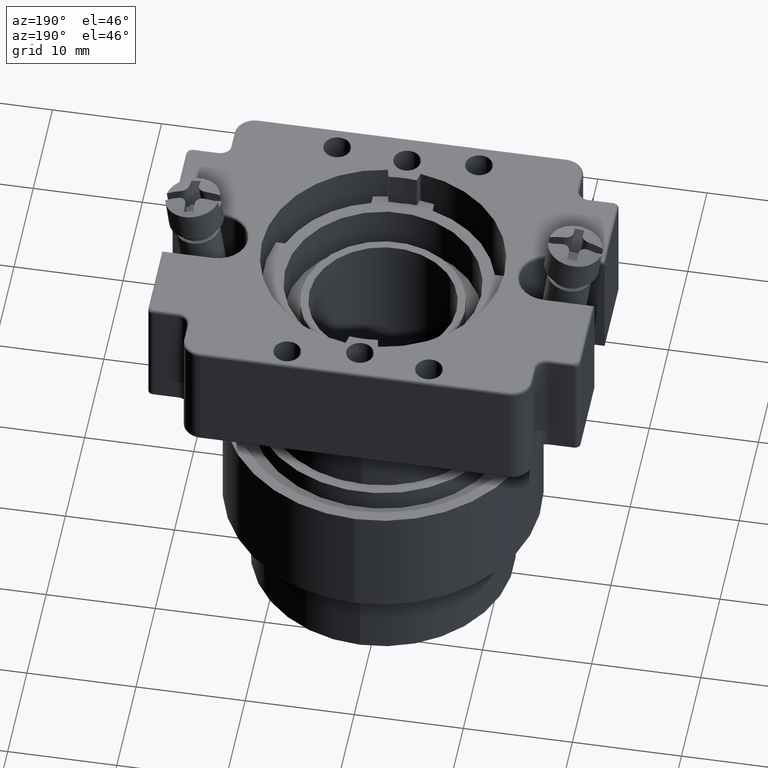
[diagram: clean part render]
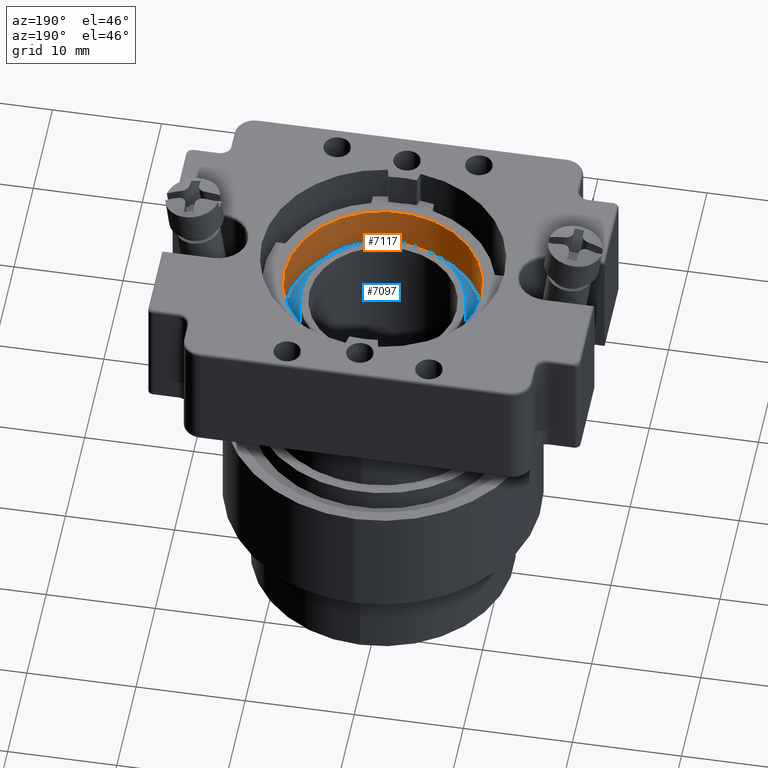
[diagram: same view with the hole feature highlighted: cylindrical wall and planar end face, labeled with their STEP entity ids]
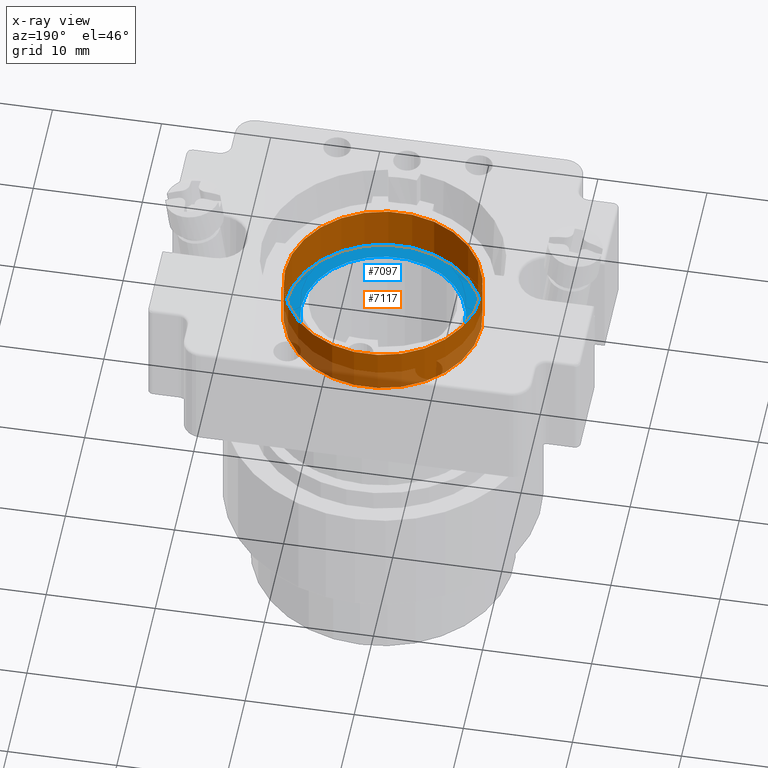
[diagram: x-ray of the same camera — body ghosted, the hole faces saturated]
A machine part, auxiliary view. The highlighted faces form one hole feature of diameter 18 mm: the cylindrical wall (entity #7117, orange) and its adjacent planar end face (entity #7097, blue) — they share a circular edge in the B-rep.
The next image is the same camera in x-ray (body ghosted, the hole faces saturated) — the bore reads through the body.
Wall:
#7083=CARTESIAN_POINT('',(-10.320895354876740,-0.031685679495354,9.0));
#7084=VERTEX_POINT('',#7083);
#7085=CARTESIAN_POINT('',(-10.320895354876740,-0.031685679495355,0.0));
#7086=DIRECTION('',(-1.0,0.0,0.0));
#7087=DIRECTION('',(0.0,0.0,-1.0));
#7088=AXIS2_PLACEMENT_3D('',#7085,#7086,#7087);
#7089=CIRCLE('',#7088,9.0);
#7090=EDGE_CURVE('',#7084,#7084,#7089,.T.);
#7098=CARTESIAN_POINT('',(-14.620895354876740,-0.031685679495356,0.0));
#7099=DIRECTION('',(1.0,9.682178E-017,0.0));
#7100=DIRECTION('',(0.0,0.0,-1.0));
#7101=AXIS2_PLACEMENT_3D('',#7098,#7099,#7100);
#7102=CYLINDRICAL_SURFACE('',#7101,9.0);
#7103=ORIENTED_EDGE('',*,*,#7090,.F.);
#7104=EDGE_LOOP('',(#7103));
#7105=FACE_OUTER_BOUND('',#7104,.T.);
#7106=CARTESIAN_POINT('',(-14.620895354876740,-0.031685679495355,9.0));
#7107=VERTEX_POINT('',#7106);
#7108=CARTESIAN_POINT('',(-14.620895354876740,-0.031685679495356,0.0));
#7109=DIRECTION('',(1.0,0.0,0.0));
#7110=DIRECTION('',(0.0,0.0,-1.0));
#7111=AXIS2_PLACEMENT_3D('',#7108,#7109,#7110);
#7112=CIRCLE('',#7111,9.0);
#7113=EDGE_CURVE('',#7107,#7107,#7112,.T.);
#7114=ORIENTED_EDGE('',*,*,#7113,.F.);
#7115=EDGE_LOOP('',(#7114));
#7116=FACE_BOUND('',#7115,.T.);
#7117=ADVANCED_FACE('',(#7105,#7116),#7102,.F.);
End face:
#7054=CARTESIAN_POINT('',(-10.320895354876740,-0.031685679495354,7.500000000000000));
#7055=VERTEX_POINT('',#7054);
#7056=CARTESIAN_POINT('',(-10.320895354876740,-0.031685679495355,0.0));
#7057=DIRECTION('',(1.0,0.0,0.0));
#7058=DIRECTION('',(0.0,0.0,-1.0));
#7059=AXIS2_PLACEMENT_3D('',#7056,#7057,#7058);
#7060=CIRCLE('',#7059,7.500000000000000);
#7061=EDGE_CURVE('',#7055,#7055,#7060,.T.);
#7078=CARTESIAN_POINT('',(-10.320895354876740,-0.031685679495355,0.0));
#7079=DIRECTION('',(1.0,0.0,0.0));
#7080=DIRECTION('',(0.0,0.0,-1.0));
#7081=AXIS2_PLACEMENT_3D('',#7078,#7079,#7080);
#7082=PLANE('',#7081);
#7083=CARTESIAN_POINT('',(-10.320895354876740,-0.031685679495354,9.0));
#7084=VERTEX_POINT('',#7083);
#7085=CARTESIAN_POINT('',(-10.320895354876740,-0.031685679495355,0.0));
#7086=DIRECTION('',(-1.0,0.0,0.0));
#7087=DIRECTION('',(0.0,0.0,-1.0));
#7088=AXIS2_PLACEMENT_3D('',#7085,#7086,#7087);
#7089=CIRCLE('',#7088,9.0);
#7090=EDGE_CURVE('',#7084,#7084,#7089,.T.);
#7091=ORIENTED_EDGE('',*,*,#7090,.T.);
#7092=EDGE_LOOP('',(#7091));
#7093=FACE_OUTER_BOUND('',#7092,.T.);
#7094=ORIENTED_EDGE('',*,*,#7061,.T.);
#7095=EDGE_LOOP('',(#7094));
#7096=FACE_BOUND('',#7095,.T.);
#7097=ADVANCED_FACE('',(#7093,#7096),#7082,.F.);